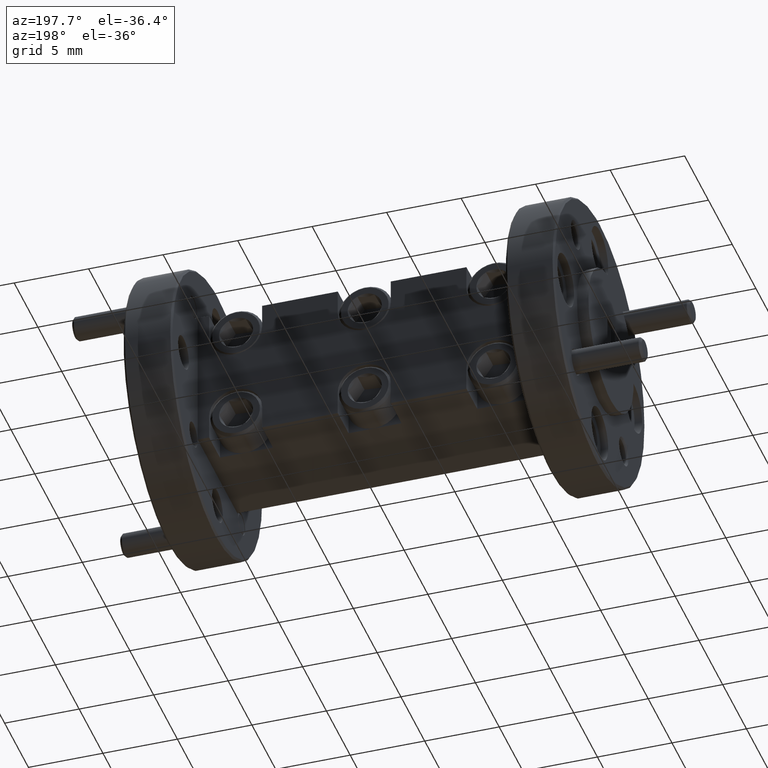
[diagram: clean part render]
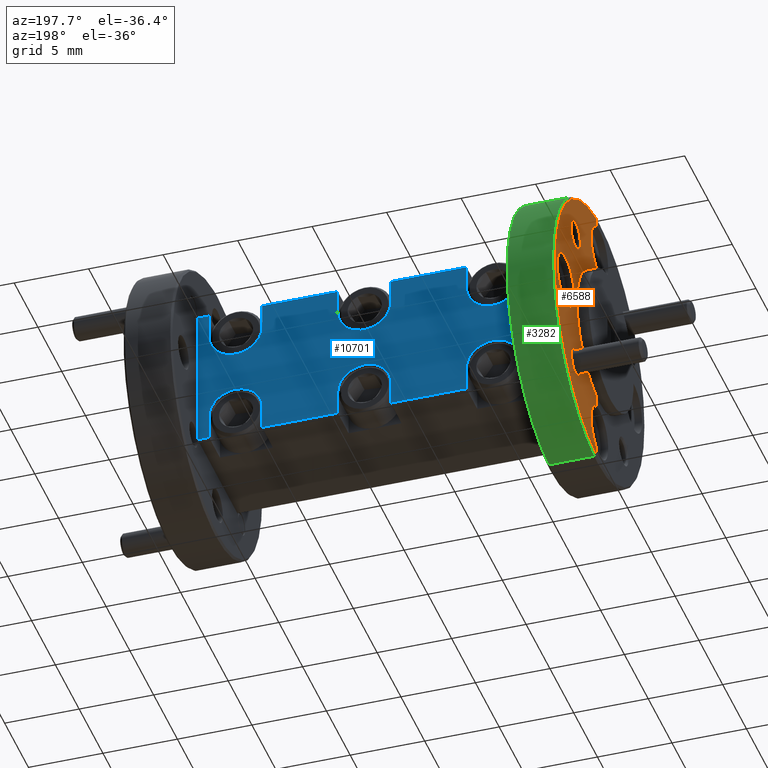
[diagram: same view with three faces highlighted in distinct colors, each labeled with its STEP entity id]
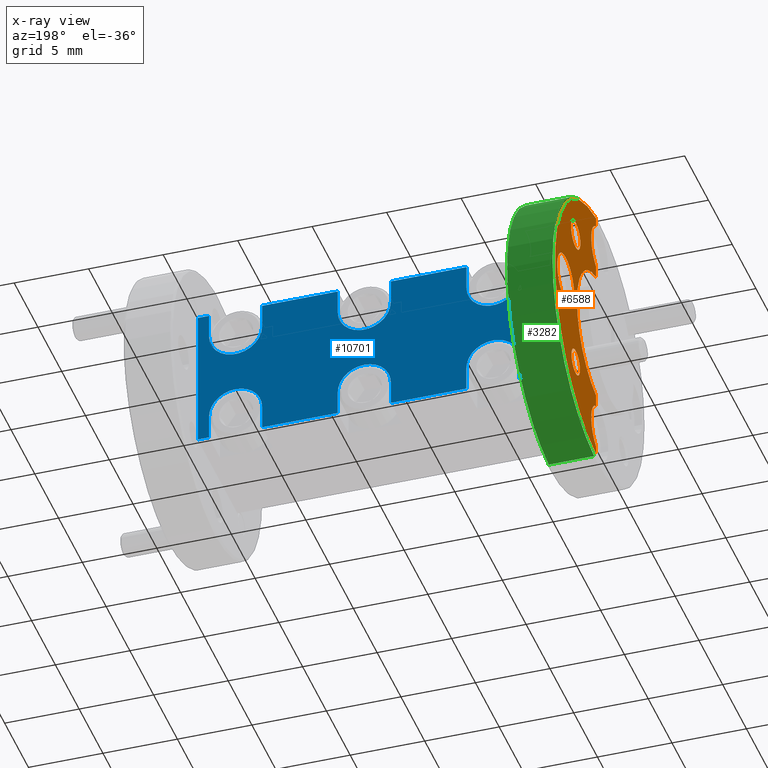
[diagram: x-ray of the same camera — body ghosted, the three highlighted faces saturated]
A machine part, auxiliary view with three faces highlighted in distinct colors.
The next image is the same camera in x-ray (body ghosted, the three faces saturated) — at least one of them is partly hidden behind the body in this view.
Their STEP definitions:

[orange] entity #6588 — the highlighted planar face has unit normal (-1, 0, 0).
#89 = VERTEX_POINT ( 'NONE', #9637 ) ;
#205 = CIRCLE ( 'NONE', #10971, 0.03849999999999997900 ) ;
#314 = DIRECTION ( 'NONE',  ( 0.0000000000000000000, 0.0000000000000000000, 1.000000000000000000 ) ) ;
#475 = CARTESIAN_POINT ( 'NONE',  ( -0.5699999999999999500, -1.280553747030123400E-017, 0.3442559520997826000 ) ) ;
#505 = CIRCLE ( 'NONE', #4522, 0.06999999999999996500 ) ;
#570 = ORIENTED_EDGE ( 'NONE', *, *, #11108, .F. ) ;
#633 = DIRECTION ( 'NONE',  ( 0.0000000000000000000, 0.0000000000000000000, 1.000000000000000000 ) ) ;
#707 = DIRECTION ( 'NONE',  ( -1.000000000000000000, 0.0000000000000000000, 0.0000000000000000000 ) ) ;
#727 = CARTESIAN_POINT ( 'NONE',  ( -0.5699999999999999500, 0.0000000000000000000, 0.0000000000000000000 ) ) ;
#739 = EDGE_CURVE ( 'NONE', #6390, #1070, #205, .T. ) ;
#770 = AXIS2_PLACEMENT_3D ( 'NONE', #1376, #3146, #2084 ) ;
#912 = DIRECTION ( 'NONE',  ( 0.0000000000000000000, 0.0000000000000000000, 1.000000000000000000 ) ) ;
#986 = DIRECTION ( 'NONE',  ( -1.000000000000000000, -0.0000000000000000000, -0.0000000000000000000 ) ) ;
#1015 = VERTEX_POINT ( 'NONE', #1660 ) ;
#1070 = VERTEX_POINT ( 'NONE', #1780 ) ;
#1117 = CIRCLE ( 'NONE', #770, 0.06999999999999996500 ) ;
#1376 = CARTESIAN_POINT ( 'NONE',  ( -0.5699999999999999500, -0.03050000000000009300, 0.2812500000000008900 ) ) ;
#1453 = CARTESIAN_POINT ( 'NONE',  ( -0.5699999999999999500, 0.1683737822087163800, -0.1988737822087160400 ) ) ;
#1525 = EDGE_CURVE ( 'NONE', #2745, #1015, #8411, .T. ) ;
#1606 = CARTESIAN_POINT ( 'NONE',  ( -0.5699999999999999500, 0.1683737822087163800, 0.1988737822087169600 ) ) ;
#1660 = CARTESIAN_POINT ( 'NONE',  ( -0.5699999999999999500, -1.280553747030123400E-017, 0.2182440479002191500 ) ) ;
#1698 = EDGE_CURVE ( 'NONE', #2745, #8046, #5380, .T. ) ;
#1751 = DIRECTION ( 'NONE',  ( -1.000000000000000000, 0.0000000000000000000, 0.0000000000000000000 ) ) ;
#1780 = CARTESIAN_POINT ( 'NONE',  ( -0.5699999999999999500, 0.1683737822087163800, 0.2373737822087169400 ) ) ;
#1952 = CIRCLE ( 'NONE', #2813, 0.07000000000000000700 ) ;
#2084 = DIRECTION ( 'NONE',  ( 0.0000000000000000000, 0.0000000000000000000, 1.000000000000000000 ) ) ;
#2160 = FACE_BOUND ( 'NONE', #7267, .T. ) ;
#2330 = CARTESIAN_POINT ( 'NONE',  ( -0.5699999999999999500, 0.0000000000000000000, 0.3687407625961636700 ) ) ;
#2346 = ORIENTED_EDGE ( 'NONE', *, *, #9823, .F. ) ;
#2349 = VECTOR ( 'NONE', #5856, 39.37007874015748100 ) ;
#2416 = DIRECTION ( 'NONE',  ( 0.0000000000000000000, -0.0000000000000000000, 1.000000000000000000 ) ) ;
#2466 = EDGE_CURVE ( 'NONE', #9999, #8046, #5360, .T. ) ;
#2518 = PLANE ( 'NONE',  #2816 ) ;
#2603 = DIRECTION ( 'NONE',  ( 0.0000000000000000000, 0.0000000000000000000, 1.000000000000000000 ) ) ;
#2745 = VERTEX_POINT ( 'NONE', #6739 ) ;
#2813 = AXIS2_PLACEMENT_3D ( 'NONE', #5210, #4353, #912 ) ;
#2816 = AXIS2_PLACEMENT_3D ( 'NONE', #9600, #707, #5209 ) ;
#3004 = VECTOR ( 'NONE', #2416, 39.37007874015748100 ) ;
#3062 = LINE ( 'NONE', #4090, #2349 ) ;
#3082 = DIRECTION ( 'NONE',  ( -1.000000000000000000, 0.0000000000000000000, 0.0000000000000000000 ) ) ;
#3142 = CARTESIAN_POINT ( 'NONE',  ( -0.5699999999999999500, -0.03050000000000010700, -0.2812500000000000600 ) ) ;
#3146 = DIRECTION ( 'NONE',  ( -1.000000000000000000, 0.0000000000000000000, 0.0000000000000000000 ) ) ;
#3197 = EDGE_CURVE ( 'NONE', #3884, #1015, #1117, .T. ) ;
#3374 = ORIENTED_EDGE ( 'NONE', *, *, #3704, .T. ) ;
#3426 = FACE_OUTER_BOUND ( 'NONE', #9100, .T. ) ;
#3434 = AXIS2_PLACEMENT_3D ( 'NONE', #1606, #9746, #11415 ) ;
#3518 = CARTESIAN_POINT ( 'NONE',  ( -0.5699999999999999500, 0.2507499999999999200, 4.695363739110452600E-016 ) ) ;
#3559 = ORIENTED_EDGE ( 'NONE', *, *, #6648, .T. ) ;
#3693 = ORIENTED_EDGE ( 'NONE', *, *, #10282, .F. ) ;
#3704 = EDGE_CURVE ( 'NONE', #89, #8391, #3062, .T. ) ;
#3774 = DIRECTION ( 'NONE',  ( 0.0000000000000000000, 0.0000000000000000000, 1.000000000000000000 ) ) ;
#3856 = CARTESIAN_POINT ( 'NONE',  ( -0.5699999999999999500, -0.03050000000000000600, 4.751391330171444000E-016 ) ) ;
#3884 = VERTEX_POINT ( 'NONE', #475 ) ;
#3892 = CARTESIAN_POINT ( 'NONE',  ( -0.5699999999999999500, 0.1683737822087163800, 0.1603737822087169800 ) ) ;
#3955 = ORIENTED_EDGE ( 'NONE', *, *, #1525, .T. ) ;
#4066 = CIRCLE ( 'NONE', #6851, 0.03474999999999998200 ) ;
#4090 = CARTESIAN_POINT ( 'NONE',  ( -0.5699999999999999500, 0.0000000000000000000, 0.0000000000000000000 ) ) ;
#4138 = DIRECTION ( 'NONE',  ( 0.0000000000000000000, 0.0000000000000000000, 1.000000000000000000 ) ) ;
#4246 = CARTESIAN_POINT ( 'NONE',  ( -0.5699999999999999500, 0.2507499999999999200, -0.06999999999999953500 ) ) ;
#4264 = DIRECTION ( 'NONE',  ( 0.0000000000000000000, -0.0000000000000000000, 1.000000000000000000 ) ) ;
#4353 = DIRECTION ( 'NONE',  ( -1.000000000000000000, 0.0000000000000000000, 0.0000000000000000000 ) ) ;
#4420 = DIRECTION ( 'NONE',  ( 0.0000000000000000000, -0.0000000000000000000, 1.000000000000000000 ) ) ;
#4522 = AXIS2_PLACEMENT_3D ( 'NONE', #3142, #11208, #4138 ) ;
#4695 = DIRECTION ( 'NONE',  ( -1.000000000000000000, -0.0000000000000000000, -0.0000000000000000000 ) ) ;
#4797 = FACE_BOUND ( 'NONE', #9982, .T. ) ;
#5101 = DIRECTION ( 'NONE',  ( -1.000000000000000000, 0.0000000000000000000, 0.0000000000000000000 ) ) ;
#5209 = DIRECTION ( 'NONE',  ( 0.0000000000000000000, 0.0000000000000000000, 1.000000000000000000 ) ) ;
#5210 = CARTESIAN_POINT ( 'NONE',  ( -0.5699999999999999500, 0.2507499999999999200, 4.695363739110452600E-016 ) ) ;
#5360 = LINE ( 'NONE', #7043, #6747 ) ;
#5380 = CIRCLE ( 'NONE', #9532, 0.1875000000000000300 ) ;
#5384 = VERTEX_POINT ( 'NONE', #2330 ) ;
#5635 = CARTESIAN_POINT ( 'NONE',  ( -0.5699999999999999500, 0.1683737822087163800, 0.1988737822087169600 ) ) ;
#5768 = EDGE_CURVE ( 'NONE', #9999, #8391, #505, .T. ) ;
#5856 = DIRECTION ( 'NONE',  ( 0.0000000000000000000, -0.0000000000000000000, 1.000000000000000000 ) ) ;
#6051 = VERTEX_POINT ( 'NONE', #9078 ) ;
#6094 = VERTEX_POINT ( 'NONE', #10044 ) ;
#6234 = ORIENTED_EDGE ( 'NONE', *, *, #5768, .F. ) ;
#6287 = CARTESIAN_POINT ( 'NONE',  ( -0.5699999999999999500, -4.268512490100411300E-018, -0.2182440479002183700 ) ) ;
#6305 = CARTESIAN_POINT ( 'NONE',  ( -0.5699999999999999500, 0.1683737822087163800, -0.1988737822087160400 ) ) ;
#6390 = VERTEX_POINT ( 'NONE', #3892 ) ;
#6587 = CIRCLE ( 'NONE', #3434, 0.03849999999999997900 ) ;
#6588 = ADVANCED_FACE ( 'NONE', ( #3426, #4797, #2160, #8986 ), #2518, .T. ) ;
#6648 = EDGE_CURVE ( 'NONE', #3884, #5384, #9545, .T. ) ;
#6739 = CARTESIAN_POINT ( 'NONE',  ( -0.5699999999999999500, 8.537024980200822600E-018, 0.1850027026829613200 ) ) ;
#6747 = VECTOR ( 'NONE', #4264, 39.37007874015748100 ) ;
#6767 = AXIS2_PLACEMENT_3D ( 'NONE', #3856, #3082, #10153 ) ;
#6851 = AXIS2_PLACEMENT_3D ( 'NONE', #1453, #8615, #10249 ) ;
#7043 = CARTESIAN_POINT ( 'NONE',  ( -0.5699999999999999500, 0.0000000000000000000, 0.0000000000000000000 ) ) ;
#7076 = ORIENTED_EDGE ( 'NONE', *, *, #8437, .T. ) ;
#7081 = CARTESIAN_POINT ( 'NONE',  ( -0.5699999999999999500, 8.537024980200822600E-018, -0.1850027026829603500 ) ) ;
#7267 = EDGE_LOOP ( 'NONE', ( #2346, #11428 ) ) ;
#7274 = CARTESIAN_POINT ( 'NONE',  ( -0.5699999999999999500, 0.0000000000000000000, 0.0000000000000000000 ) ) ;
#7844 = ORIENTED_EDGE ( 'NONE', *, *, #1698, .F. ) ;
#8046 = VERTEX_POINT ( 'NONE', #7081 ) ;
#8333 = CIRCLE ( 'NONE', #8387, 0.07000000000000000700 ) ;
#8387 = AXIS2_PLACEMENT_3D ( 'NONE', #3518, #1751, #2603 ) ;
#8391 = VERTEX_POINT ( 'NONE', #9853 ) ;
#8411 = LINE ( 'NONE', #727, #3004 ) ;
#8437 = EDGE_CURVE ( 'NONE', #5384, #89, #8907, .T. ) ;
#8615 = DIRECTION ( 'NONE',  ( -1.000000000000000000, -0.0000000000000000000, -0.0000000000000000000 ) ) ;
#8759 = EDGE_CURVE ( 'NONE', #6051, #9306, #8333, .T. ) ;
#8907 = CIRCLE ( 'NONE', #6767, 0.3700000000000000000 ) ;
#8986 = FACE_BOUND ( 'NONE', #9988, .T. ) ;
#9078 = CARTESIAN_POINT ( 'NONE',  ( -0.5699999999999999500, 0.2507499999999999200, 0.07000000000000047900 ) ) ;
#9087 = CIRCLE ( 'NONE', #10555, 0.03474999999999998200 ) ;
#9100 = EDGE_LOOP ( 'NONE', ( #3559, #7076, #3374, #6234, #10174, #7844, #3955, #9121 ) ) ;
#9121 = ORIENTED_EDGE ( 'NONE', *, *, #3197, .F. ) ;
#9306 = VERTEX_POINT ( 'NONE', #4246 ) ;
#9532 = AXIS2_PLACEMENT_3D ( 'NONE', #11281, #5101, #633 ) ;
#9545 = LINE ( 'NONE', #7274, #9816 ) ;
#9600 = CARTESIAN_POINT ( 'NONE',  ( -0.5699999999999999500, -0.03050000000000002400, 4.908789363615472900E-016 ) ) ;
#9637 = CARTESIAN_POINT ( 'NONE',  ( -0.5699999999999999500, 0.0000000000000000000, -0.3687407625961627300 ) ) ;
#9746 = DIRECTION ( 'NONE',  ( -1.000000000000000000, -0.0000000000000000000, -0.0000000000000000000 ) ) ;
#9816 = VECTOR ( 'NONE', #4420, 39.37007874015748100 ) ;
#9823 = EDGE_CURVE ( 'NONE', #1070, #6390, #6587, .T. ) ;
#9853 = CARTESIAN_POINT ( 'NONE',  ( -0.5699999999999999500, -1.707404996040164500E-017, -0.3442559520997818300 ) ) ;
#9982 = EDGE_LOOP ( 'NONE', ( #10549, #570 ) ) ;
#9988 = EDGE_LOOP ( 'NONE', ( #3693, #11542 ) ) ;
#9999 = VERTEX_POINT ( 'NONE', #6287 ) ;
#10024 = CARTESIAN_POINT ( 'NONE',  ( -0.5699999999999999500, 0.1683737822087163800, -0.2336237822087160200 ) ) ;
#10044 = CARTESIAN_POINT ( 'NONE',  ( -0.5699999999999999500, 0.1683737822087163800, -0.1641237822087160400 ) ) ;
#10153 = DIRECTION ( 'NONE',  ( 0.0000000000000000000, 0.0000000000000000000, 1.000000000000000000 ) ) ;
#10174 = ORIENTED_EDGE ( 'NONE', *, *, #2466, .T. ) ;
#10249 = DIRECTION ( 'NONE',  ( 0.0000000000000000000, 0.0000000000000000000, 1.000000000000000000 ) ) ;
#10282 = EDGE_CURVE ( 'NONE', #6094, #11184, #4066, .T. ) ;
#10549 = ORIENTED_EDGE ( 'NONE', *, *, #8759, .F. ) ;
#10555 = AXIS2_PLACEMENT_3D ( 'NONE', #6305, #986, #3774 ) ;
#10971 = AXIS2_PLACEMENT_3D ( 'NONE', #5635, #4695, #314 ) ;
#11108 = EDGE_CURVE ( 'NONE', #9306, #6051, #1952, .T. ) ;
#11184 = VERTEX_POINT ( 'NONE', #10024 ) ;
#11208 = DIRECTION ( 'NONE',  ( -1.000000000000000000, 0.0000000000000000000, 0.0000000000000000000 ) ) ;
#11281 = CARTESIAN_POINT ( 'NONE',  ( -0.5699999999999999500, -0.03050000000000002400, 4.908789363615472900E-016 ) ) ;
#11415 = DIRECTION ( 'NONE',  ( 0.0000000000000000000, 0.0000000000000000000, 1.000000000000000000 ) ) ;
#11428 = ORIENTED_EDGE ( 'NONE', *, *, #739, .F. ) ;
#11504 = EDGE_CURVE ( 'NONE', #11184, #6094, #9087, .T. ) ;
#11542 = ORIENTED_EDGE ( 'NONE', *, *, #11504, .F. ) ;

[blue] entity #10701 — the highlighted planar face has unit normal (0, -1, 0).
#2 = CIRCLE ( 'NONE', #402, 0.07000000000000000700 ) ;
#83 = DIRECTION ( 'NONE',  ( -0.0000000000000000000, -0.0000000000000000000, -1.000000000000000000 ) ) ;
#116 = EDGE_CURVE ( 'NONE', #5122, #4512, #8749, .T. ) ;
#124 = DIRECTION ( 'NONE',  ( 1.000000000000000000, 0.0000000000000000000, -0.0000000000000000000 ) ) ;
#149 = DIRECTION ( 'NONE',  ( 0.0000000000000000000, 0.0000000000000000000, 1.000000000000000000 ) ) ;
#193 = DIRECTION ( 'NONE',  ( -1.000000000000000000, 0.0000000000000000000, 3.880465900091282400E-017 ) ) ;
#226 = CARTESIAN_POINT ( 'NONE',  ( -0.2700000000000001300, 0.1329999999999999500, 0.1900000000000000300 ) ) ;
#233 = CARTESIAN_POINT ( 'NONE',  ( 0.06999999999999986800, 0.1329999999999999500, 0.1250000000000001100 ) ) ;
#269 = ORIENTED_EDGE ( 'NONE', *, *, #3968, .F. ) ;
#333 = DIRECTION ( 'NONE',  ( -0.0000000000000000000, -0.0000000000000000000, 1.000000000000000000 ) ) ;
#339 = CIRCLE ( 'NONE', #10189, 0.07000000000000000700 ) ;
#401 = CARTESIAN_POINT ( 'NONE',  ( -0.4400000000000001100, 0.1329999999999999500, 0.3750000000000002200 ) ) ;
#402 = AXIS2_PLACEMENT_3D ( 'NONE', #2103, #9269, #10879 ) ;
#463 = ORIENTED_EDGE ( 'NONE', *, *, #3860, .T. ) ;
#507 = EDGE_CURVE ( 'NONE', #10570, #2225, #8164, .T. ) ;
#509 = CARTESIAN_POINT ( 'NONE',  ( -1.365923996832131600E-016, 0.1329999999999999500, -0.1250000000000001100 ) ) ;
#559 = CARTESIAN_POINT ( 'NONE',  ( -0.3400000000000001400, 0.1329999999999999500, 0.1250000000000001100 ) ) ;
#594 = CARTESIAN_POINT ( 'NONE',  ( -0.07000000000000014500, 0.1329999999999999500, -0.1250000000000001100 ) ) ;
#672 = DIRECTION ( 'NONE',  ( -0.0000000000000000000, -1.000000000000000000, -0.0000000000000000000 ) ) ;
#689 = CARTESIAN_POINT ( 'NONE',  ( 0.06999999999999986800, 0.1329999999999999500, -0.1250000000000001100 ) ) ;
#764 = VERTEX_POINT ( 'NONE', #233 ) ;
#827 = CARTESIAN_POINT ( 'NONE',  ( 0.4099999999999998600, 0.1329999999999999500, -0.1250000000000001400 ) ) ;
#900 = VERTEX_POINT ( 'NONE', #5005 ) ;
#1045 = CARTESIAN_POINT ( 'NONE',  ( 0.4400000000000001100, 0.1329999999999999500, 0.1900000000000000300 ) ) ;
#1165 = CARTESIAN_POINT ( 'NONE',  ( -0.2700000000000001300, 0.1329999999999999500, -0.1250000000000001100 ) ) ;
#1211 = DIRECTION ( 'NONE',  ( 0.0000000000000000000, 1.000000000000000000, 0.0000000000000000000 ) ) ;
#1248 = CIRCLE ( 'NONE', #8373, 0.07000000000000000700 ) ;
#1446 = EDGE_CURVE ( 'NONE', #9651, #10932, #3137, .T. ) ;
#1696 = AXIS2_PLACEMENT_3D ( 'NONE', #2493, #11288, #10469 ) ;
#1765 = EDGE_CURVE ( 'NONE', #5675, #7776, #9526, .T. ) ;
#1831 = VECTOR ( 'NONE', #8414, 39.37007874015748100 ) ;
#1880 = ORIENTED_EDGE ( 'NONE', *, *, #11524, .F. ) ;
#1935 = ORIENTED_EDGE ( 'NONE', *, *, #8511, .T. ) ;
#2060 = CIRCLE ( 'NONE', #2358, 0.07000000000000000700 ) ;
#2064 = CARTESIAN_POINT ( 'NONE',  ( 0.2699999999999998500, 0.1329999999999999500, -0.1250000000000001400 ) ) ;
#2103 = CARTESIAN_POINT ( 'NONE',  ( 0.3399999999999998600, 0.1329999999999999500, -0.1250000000000001400 ) ) ;
#2225 = VERTEX_POINT ( 'NONE', #6062 ) ;
#2295 = VERTEX_POINT ( 'NONE', #9251 ) ;
#2357 = ORIENTED_EDGE ( 'NONE', *, *, #8079, .F. ) ;
#2358 = AXIS2_PLACEMENT_3D ( 'NONE', #559, #672, #9500 ) ;
#2362 = DIRECTION ( 'NONE',  ( 0.0000000000000000000, 0.0000000000000000000, 1.000000000000000000 ) ) ;
#2380 = DIRECTION ( 'NONE',  ( 0.0000000000000000000, 0.0000000000000000000, 1.000000000000000000 ) ) ;
#2392 = VERTEX_POINT ( 'NONE', #5918 ) ;
#2397 = VECTOR ( 'NONE', #5237, 39.37007874015748100 ) ;
#2421 = DIRECTION ( 'NONE',  ( 1.000000000000000000, 0.0000000000000000000, -0.0000000000000000000 ) ) ;
#2493 = CARTESIAN_POINT ( 'NONE',  ( -1.365923996832131600E-016, 0.1329999999999999500, -0.1250000000000001100 ) ) ;
#2545 = EDGE_CURVE ( 'NONE', #5671, #10932, #3808, .T. ) ;
#2565 = VERTEX_POINT ( 'NONE', #827 ) ;
#2566 = EDGE_CURVE ( 'NONE', #5415, #2295, #6602, .T. ) ;
#2733 = EDGE_CURVE ( 'NONE', #5596, #9803, #4496, .T. ) ;
#2767 = CARTESIAN_POINT ( 'NONE',  ( 0.4099999999999998600, 0.1329999999999999500, -0.1900000000000000600 ) ) ;
#2773 = VECTOR ( 'NONE', #5296, 39.37007874015748100 ) ;
#2806 = CARTESIAN_POINT ( 'NONE',  ( 0.4400000000000001100, 0.1329999999999999500, -0.1899999999999999700 ) ) ;
#2986 = AXIS2_PLACEMENT_3D ( 'NONE', #6098, #11257, #9594 ) ;
#3064 = CARTESIAN_POINT ( 'NONE',  ( 0.4099999999999998600, 0.1329999999999999500, 0.1900000000000000600 ) ) ;
#3066 = DIRECTION ( 'NONE',  ( 0.0000000000000000000, 0.0000000000000000000, -1.000000000000000000 ) ) ;
#3135 = VERTEX_POINT ( 'NONE', #7418 ) ;
#3137 = LINE ( 'NONE', #5783, #9819 ) ;
#3249 = VECTOR ( 'NONE', #5437, 39.37007874015748100 ) ;
#3255 = CARTESIAN_POINT ( 'NONE',  ( 0.4099999999999998600, 0.1329999999999999500, 0.1900000000000000300 ) ) ;
#3318 = DIRECTION ( 'NONE',  ( 0.0000000000000000000, 0.0000000000000000000, 1.000000000000000000 ) ) ;
#3364 = VERTEX_POINT ( 'NONE', #3255 ) ;
#3506 = VECTOR ( 'NONE', #2421, 39.37007874015748100 ) ;
#3638 = VERTEX_POINT ( 'NONE', #7445 ) ;
#3642 = LINE ( 'NONE', #10169, #1831 ) ;
#3759 = VECTOR ( 'NONE', #3318, 39.37007874015748100 ) ;
#3800 = VECTOR ( 'NONE', #193, 39.37007874015748100 ) ;
#3808 = LINE ( 'NONE', #9790, #3249 ) ;
#3851 = ORIENTED_EDGE ( 'NONE', *, *, #11097, .F. ) ;
#3860 = EDGE_CURVE ( 'NONE', #6406, #5265, #4716, .T. ) ;
#3968 = EDGE_CURVE ( 'NONE', #9803, #5675, #9834, .T. ) ;
#4015 = ORIENTED_EDGE ( 'NONE', *, *, #4647, .F. ) ;
#4022 = ORIENTED_EDGE ( 'NONE', *, *, #7130, .T. ) ;
#4054 = CARTESIAN_POINT ( 'NONE',  ( 0.3399999999999998600, 0.1329999999999999500, 0.1250000000000001400 ) ) ;
#4250 = CARTESIAN_POINT ( 'NONE',  ( 0.2699999999999998500, 0.1329999999999999500, -0.1900000000000000600 ) ) ;
#4325 = LINE ( 'NONE', #7758, #3506 ) ;
#4351 = DIRECTION ( 'NONE',  ( 0.0000000000000000000, 0.0000000000000000000, 1.000000000000000000 ) ) ;
#4422 = VECTOR ( 'NONE', #333, 39.37007874015748100 ) ;
#4460 = DIRECTION ( 'NONE',  ( -1.000000000000000000, 0.0000000000000000000, 3.880465900091282400E-017 ) ) ;
#4472 = ORIENTED_EDGE ( 'NONE', *, *, #116, .F. ) ;
#4492 = LINE ( 'NONE', #7432, #7148 ) ;
#4496 = CIRCLE ( 'NONE', #11240, 0.07000000000000000700 ) ;
#4512 = VERTEX_POINT ( 'NONE', #8976 ) ;
#4623 = LINE ( 'NONE', #11018, #3800 ) ;
#4647 = EDGE_CURVE ( 'NONE', #6581, #5122, #1248, .T. ) ;
#4651 = CARTESIAN_POINT ( 'NONE',  ( 0.4400000000000000000, 0.1329999999999999500, 0.1900000000000000300 ) ) ;
#4664 = ORIENTED_EDGE ( 'NONE', *, *, #507, .T. ) ;
#4666 = AXIS2_PLACEMENT_3D ( 'NONE', #4054, #5854, #9502 ) ;
#4716 = CIRCLE ( 'NONE', #4666, 0.07000000000000000700 ) ;
#4746 = LINE ( 'NONE', #6108, #7529 ) ;
#4765 = ORIENTED_EDGE ( 'NONE', *, *, #9795, .T. ) ;
#4776 = CARTESIAN_POINT ( 'NONE',  ( -0.07000000000000014500, 0.1329999999999999500, -0.1899999999999999700 ) ) ;
#4786 = DIRECTION ( 'NONE',  ( 0.0000000000000000000, -0.0000000000000000000, -1.000000000000000000 ) ) ;
#4794 = EDGE_CURVE ( 'NONE', #2565, #5671, #3642, .T. ) ;
#4822 = PLANE ( 'NONE',  #10392 ) ;
#4844 = DIRECTION ( 'NONE',  ( -1.138269997360109900E-016, -0.0000000000000000000, -1.000000000000000000 ) ) ;
#4874 = EDGE_CURVE ( 'NONE', #4512, #9512, #4325, .T. ) ;
#4965 = LINE ( 'NONE', #7553, #4422 ) ;
#4967 = ORIENTED_EDGE ( 'NONE', *, *, #7474, .F. ) ;
#4991 = CIRCLE ( 'NONE', #1696, 0.07000000000000000700 ) ;
#5005 = CARTESIAN_POINT ( 'NONE',  ( -0.4400000000000001700, 0.1329999999999999500, -0.1900000000000000300 ) ) ;
#5122 = VERTEX_POINT ( 'NONE', #1165 ) ;
#5237 = DIRECTION ( 'NONE',  ( -1.000000000000000000, 0.0000000000000000000, 3.880465900091282400E-017 ) ) ;
#5265 = VERTEX_POINT ( 'NONE', #7661 ) ;
#5287 = VECTOR ( 'NONE', #4844, 39.37007874015748100 ) ;
#5296 = DIRECTION ( 'NONE',  ( 0.0000000000000000000, 0.0000000000000000000, -1.000000000000000000 ) ) ;
#5415 = VERTEX_POINT ( 'NONE', #8401 ) ;
#5419 = CARTESIAN_POINT ( 'NONE',  ( -1.365923996832131600E-016, 0.1329999999999999500, -0.05500000000000011100 ) ) ;
#5428 = AXIS2_PLACEMENT_3D ( 'NONE', #8550, #5805, #7546 ) ;
#5437 = DIRECTION ( 'NONE',  ( 1.000000000000000000, 0.0000000000000000000, -0.0000000000000000000 ) ) ;
#5459 = EDGE_CURVE ( 'NONE', #7988, #8395, #9885, .T. ) ;
#5465 = VERTEX_POINT ( 'NONE', #594 ) ;
#5483 = ORIENTED_EDGE ( 'NONE', *, *, #11567, .F. ) ;
#5585 = FACE_OUTER_BOUND ( 'NONE', #9817, .T. ) ;
#5596 = VERTEX_POINT ( 'NONE', #5419 ) ;
#5671 = VERTEX_POINT ( 'NONE', #2767 ) ;
#5675 = VERTEX_POINT ( 'NONE', #6418 ) ;
#5783 = CARTESIAN_POINT ( 'NONE',  ( 0.4400000000000001100, 0.1329999999999999500, 0.3750000000000001100 ) ) ;
#5805 = DIRECTION ( 'NONE',  ( -0.0000000000000000000, -1.000000000000000000, -0.0000000000000000000 ) ) ;
#5854 = DIRECTION ( 'NONE',  ( -0.0000000000000000000, -1.000000000000000000, -0.0000000000000000000 ) ) ;
#5864 = VECTOR ( 'NONE', #2380, 39.37007874015748100 ) ;
#5873 = DIRECTION ( 'NONE',  ( -0.0000000000000000000, -0.0000000000000000000, -1.000000000000000000 ) ) ;
#5894 = VECTOR ( 'NONE', #10759, 39.37007874015748100 ) ;
#5910 = EDGE_CURVE ( 'NONE', #5465, #5596, #4991, .T. ) ;
#5918 = CARTESIAN_POINT ( 'NONE',  ( -0.07000000000000014500, 0.1329999999999999500, 0.1900000000000000300 ) ) ;
#5994 = LINE ( 'NONE', #4250, #5864 ) ;
#6062 = CARTESIAN_POINT ( 'NONE',  ( -0.4100000000000001400, 0.1329999999999999500, 0.1250000000000001100 ) ) ;
#6098 = CARTESIAN_POINT ( 'NONE',  ( -0.3400000000000001400, 0.1329999999999999500, -0.1250000000000001100 ) ) ;
#6108 = CARTESIAN_POINT ( 'NONE',  ( -0.07000000000000014500, 0.1329999999999999500, -0.1900000000000000300 ) ) ;
#6151 = EDGE_CURVE ( 'NONE', #764, #2295, #4965, .T. ) ;
#6189 = ORIENTED_EDGE ( 'NONE', *, *, #4874, .F. ) ;
#6406 = VERTEX_POINT ( 'NONE', #7426 ) ;
#6418 = CARTESIAN_POINT ( 'NONE',  ( 0.06999999999999986800, 0.1329999999999999500, -0.1900000000000000300 ) ) ;
#6469 = EDGE_CURVE ( 'NONE', #7048, #2565, #339, .T. ) ;
#6581 = VERTEX_POINT ( 'NONE', #9683 ) ;
#6602 = LINE ( 'NONE', #9712, #9648 ) ;
#6638 = ORIENTED_EDGE ( 'NONE', *, *, #8727, .T. ) ;
#6800 = VERTEX_POINT ( 'NONE', #2064 ) ;
#6824 = DIRECTION ( 'NONE',  ( -1.138269997360109900E-016, -0.0000000000000000000, -1.000000000000000000 ) ) ;
#6940 = ORIENTED_EDGE ( 'NONE', *, *, #1446, .T. ) ;
#6973 = CARTESIAN_POINT ( 'NONE',  ( 0.4400000000000000000, 0.1329999999999999500, -0.1900000000000000300 ) ) ;
#7010 = CARTESIAN_POINT ( 'NONE',  ( -0.2700000000000001300, 0.1329999999999999500, -0.1900000000000000300 ) ) ;
#7048 = VERTEX_POINT ( 'NONE', #8921 ) ;
#7107 = VECTOR ( 'NONE', #124, 39.37007874015748100 ) ;
#7130 = EDGE_CURVE ( 'NONE', #2392, #8781, #4492, .T. ) ;
#7148 = VECTOR ( 'NONE', #8201, 39.37007874015748100 ) ;
#7252 = ORIENTED_EDGE ( 'NONE', *, *, #2566, .F. ) ;
#7418 = CARTESIAN_POINT ( 'NONE',  ( -0.2700000000000000700, 0.1329999999999999500, 0.1900000000000000600 ) ) ;
#7426 = CARTESIAN_POINT ( 'NONE',  ( 0.2699999999999998500, 0.1329999999999999500, 0.1250000000000001400 ) ) ;
#7432 = CARTESIAN_POINT ( 'NONE',  ( -0.07000000000000014500, 0.1329999999999999500, 0.1900000000000000300 ) ) ;
#7445 = CARTESIAN_POINT ( 'NONE',  ( -0.2700000000000001300, 0.1329999999999999500, 0.1250000000000001100 ) ) ;
#7474 = EDGE_CURVE ( 'NONE', #8395, #6581, #7686, .T. ) ;
#7529 = VECTOR ( 'NONE', #7974, 39.37007874015748100 ) ;
#7546 = DIRECTION ( 'NONE',  ( 0.0000000000000000000, 0.0000000000000000000, -1.000000000000000000 ) ) ;
#7553 = CARTESIAN_POINT ( 'NONE',  ( 0.06999999999999986800, 0.1329999999999999500, 0.1900000000000000300 ) ) ;
#7593 = DIRECTION ( 'NONE',  ( 0.0000000000000000000, -1.000000000000000000, 0.0000000000000000000 ) ) ;
#7598 = CARTESIAN_POINT ( 'NONE',  ( -0.4100000000000001400, 0.1329999999999999500, -0.1899999999999999700 ) ) ;
#7616 = VECTOR ( 'NONE', #3066, 39.37007874015748100 ) ;
#7661 = CARTESIAN_POINT ( 'NONE',  ( 0.4099999999999998600, 0.1329999999999999500, 0.1250000000000001400 ) ) ;
#7686 = CIRCLE ( 'NONE', #2986, 0.07000000000000000700 ) ;
#7758 = CARTESIAN_POINT ( 'NONE',  ( 0.4400000000000001100, 0.1329999999999999500, -0.1899999999999999700 ) ) ;
#7776 = VERTEX_POINT ( 'NONE', #10749 ) ;
#7974 = DIRECTION ( 'NONE',  ( 0.0000000000000000000, 0.0000000000000000000, 1.000000000000000000 ) ) ;
#7988 = VERTEX_POINT ( 'NONE', #7598 ) ;
#8079 = EDGE_CURVE ( 'NONE', #7776, #6800, #5994, .T. ) ;
#8123 = CARTESIAN_POINT ( 'NONE',  ( -0.4100000000000001400, 0.1329999999999999500, -0.1250000000000001100 ) ) ;
#8157 = VERTEX_POINT ( 'NONE', #9814 ) ;
#8164 = LINE ( 'NONE', #8370, #7616 ) ;
#8175 = VECTOR ( 'NONE', #5873, 39.37007874015748100 ) ;
#8201 = DIRECTION ( 'NONE',  ( 0.0000000000000000000, 0.0000000000000000000, -1.000000000000000000 ) ) ;
#8257 = ORIENTED_EDGE ( 'NONE', *, *, #1765, .F. ) ;
#8297 = DIRECTION ( 'NONE',  ( -0.0000000000000000000, -0.0000000000000000000, 1.000000000000000000 ) ) ;
#8350 = ORIENTED_EDGE ( 'NONE', *, *, #2545, .F. ) ;
#8370 = CARTESIAN_POINT ( 'NONE',  ( -0.4100000000000001400, 0.1329999999999999500, 0.1900000000000000300 ) ) ;
#8373 = AXIS2_PLACEMENT_3D ( 'NONE', #11010, #1211, #149 ) ;
#8394 = EDGE_CURVE ( 'NONE', #900, #7988, #9187, .T. ) ;
#8395 = VERTEX_POINT ( 'NONE', #8123 ) ;
#8401 = CARTESIAN_POINT ( 'NONE',  ( 0.2699999999999998500, 0.1329999999999999500, 0.1900000000000000600 ) ) ;
#8414 = DIRECTION ( 'NONE',  ( -0.0000000000000000000, -0.0000000000000000000, -1.000000000000000000 ) ) ;
#8424 = DIRECTION ( 'NONE',  ( 0.0000000000000000000, 1.000000000000000000, 0.0000000000000000000 ) ) ;
#8455 = VECTOR ( 'NONE', #8297, 39.37007874015748100 ) ;
#8476 = CIRCLE ( 'NONE', #5428, 0.07000000000000000700 ) ;
#8511 = EDGE_CURVE ( 'NONE', #8781, #764, #8476, .T. ) ;
#8550 = CARTESIAN_POINT ( 'NONE',  ( -1.365923996832131600E-016, 0.1329999999999999500, 0.1250000000000001100 ) ) ;
#8641 = CARTESIAN_POINT ( 'NONE',  ( -0.4100000000000001400, 0.1329999999999999500, -0.1900000000000000300 ) ) ;
#8727 = EDGE_CURVE ( 'NONE', #5415, #6406, #10151, .T. ) ;
#8728 = ORIENTED_EDGE ( 'NONE', *, *, #11265, .T. ) ;
#8749 = LINE ( 'NONE', #7010, #8175 ) ;
#8781 = VERTEX_POINT ( 'NONE', #8867 ) ;
#8842 = CARTESIAN_POINT ( 'NONE',  ( 0.4400000000000001100, 0.1329999999999999500, -0.1899999999999999700 ) ) ;
#8867 = CARTESIAN_POINT ( 'NONE',  ( -0.07000000000000014500, 0.1329999999999999500, 0.1250000000000001100 ) ) ;
#8882 = EDGE_CURVE ( 'NONE', #8157, #900, #10004, .T. ) ;
#8921 = CARTESIAN_POINT ( 'NONE',  ( 0.3399999999999998600, 0.1329999999999999500, -0.05500000000000013200 ) ) ;
#8976 = CARTESIAN_POINT ( 'NONE',  ( -0.2700000000000001300, 0.1329999999999999500, -0.1900000000000000300 ) ) ;
#8987 = CARTESIAN_POINT ( 'NONE',  ( 0.06999999999999986800, 0.1329999999999999500, -0.1900000000000000300 ) ) ;
#9017 = VECTOR ( 'NONE', #10165, 39.37007874015748100 ) ;
#9081 = CARTESIAN_POINT ( 'NONE',  ( -0.4100000000000001400, 0.1329999999999999500, 0.1900000000000000300 ) ) ;
#9096 = LINE ( 'NONE', #10556, #2397 ) ;
#9187 = LINE ( 'NONE', #2806, #7107 ) ;
#9188 = EDGE_CURVE ( 'NONE', #2225, #3638, #2060, .T. ) ;
#9195 = LINE ( 'NONE', #226, #8455 ) ;
#9251 = CARTESIAN_POINT ( 'NONE',  ( 0.06999999999999986800, 0.1329999999999999500, 0.1900000000000000300 ) ) ;
#9269 = DIRECTION ( 'NONE',  ( 0.0000000000000000000, 1.000000000000000000, 0.0000000000000000000 ) ) ;
#9302 = ORIENTED_EDGE ( 'NONE', *, *, #6469, .F. ) ;
#9500 = DIRECTION ( 'NONE',  ( 0.0000000000000000000, 0.0000000000000000000, -1.000000000000000000 ) ) ;
#9502 = DIRECTION ( 'NONE',  ( 0.0000000000000000000, 0.0000000000000000000, -1.000000000000000000 ) ) ;
#9512 = VERTEX_POINT ( 'NONE', #4776 ) ;
#9526 = LINE ( 'NONE', #8842, #10080 ) ;
#9594 = DIRECTION ( 'NONE',  ( 0.0000000000000000000, 0.0000000000000000000, 1.000000000000000000 ) ) ;
#9599 = ORIENTED_EDGE ( 'NONE', *, *, #9188, .T. ) ;
#9630 = ORIENTED_EDGE ( 'NONE', *, *, #5459, .F. ) ;
#9648 = VECTOR ( 'NONE', #4460, 39.37007874015748100 ) ;
#9651 = VERTEX_POINT ( 'NONE', #1045 ) ;
#9683 = CARTESIAN_POINT ( 'NONE',  ( -0.3400000000000001400, 0.1329999999999999500, -0.05500000000000009700 ) ) ;
#9712 = CARTESIAN_POINT ( 'NONE',  ( 0.4400000000000000000, 0.1329999999999999500, 0.1900000000000000300 ) ) ;
#9790 = CARTESIAN_POINT ( 'NONE',  ( 0.4400000000000001100, 0.1329999999999999500, -0.1899999999999999700 ) ) ;
#9795 = EDGE_CURVE ( 'NONE', #5265, #3364, #11379, .T. ) ;
#9803 = VERTEX_POINT ( 'NONE', #689 ) ;
#9811 = DIRECTION ( 'NONE',  ( 1.000000000000000000, 0.0000000000000000000, -0.0000000000000000000 ) ) ;
#9814 = CARTESIAN_POINT ( 'NONE',  ( -0.4400000000000001700, 0.1329999999999999500, 0.1900000000000000600 ) ) ;
#9817 = EDGE_LOOP ( 'NONE', ( #6638, #463, #4765, #10511, #6940, #8350, #10248, #9302, #11047, #2357, #8257, #269, #10542, #11203, #3851, #6189, #4472, #4015, #4967, #9630, #11386, #10433, #5483, #4664, #9599, #8728, #1880, #4022, #1935, #10075, #7252 ) ) ;
#9819 = VECTOR ( 'NONE', #6824, 39.37007874015748100 ) ;
#9834 = LINE ( 'NONE', #8987, #10789 ) ;
#9880 = EDGE_CURVE ( 'NONE', #9651, #3364, #9096, .T. ) ;
#9885 = LINE ( 'NONE', #8641, #3759 ) ;
#9993 = CARTESIAN_POINT ( 'NONE',  ( 0.2699999999999998500, 0.1329999999999999500, 0.1900000000000000600 ) ) ;
#10004 = LINE ( 'NONE', #10177, #5287 ) ;
#10040 = EDGE_CURVE ( 'NONE', #6800, #7048, #2, .T. ) ;
#10075 = ORIENTED_EDGE ( 'NONE', *, *, #6151, .T. ) ;
#10080 = VECTOR ( 'NONE', #9811, 39.37007874015748100 ) ;
#10151 = LINE ( 'NONE', #9993, #2773 ) ;
#10165 = DIRECTION ( 'NONE',  ( -0.0000000000000000000, -0.0000000000000000000, 1.000000000000000000 ) ) ;
#10169 = CARTESIAN_POINT ( 'NONE',  ( 0.4099999999999998600, 0.1329999999999999500, -0.1900000000000000600 ) ) ;
#10177 = CARTESIAN_POINT ( 'NONE',  ( -0.4400000000000001100, 0.1329999999999999500, 0.3750000000000002200 ) ) ;
#10181 = CARTESIAN_POINT ( 'NONE',  ( 0.3399999999999998600, 0.1329999999999999500, -0.1250000000000001400 ) ) ;
#10189 = AXIS2_PLACEMENT_3D ( 'NONE', #10181, #8424, #4351 ) ;
#10248 = ORIENTED_EDGE ( 'NONE', *, *, #4794, .F. ) ;
#10392 = AXIS2_PLACEMENT_3D ( 'NONE', #401, #7593, #4786 ) ;
#10433 = ORIENTED_EDGE ( 'NONE', *, *, #8882, .F. ) ;
#10469 = DIRECTION ( 'NONE',  ( 0.0000000000000000000, 0.0000000000000000000, 1.000000000000000000 ) ) ;
#10511 = ORIENTED_EDGE ( 'NONE', *, *, #9880, .F. ) ;
#10542 = ORIENTED_EDGE ( 'NONE', *, *, #2733, .F. ) ;
#10556 = CARTESIAN_POINT ( 'NONE',  ( 0.4400000000000000000, 0.1329999999999999500, 0.1900000000000000300 ) ) ;
#10570 = VERTEX_POINT ( 'NONE', #9081 ) ;
#10701 = ADVANCED_FACE ( 'NONE', ( #5585 ), #4822, .F. ) ;
#10749 = CARTESIAN_POINT ( 'NONE',  ( 0.2699999999999998500, 0.1329999999999999500, -0.1899999999999999700 ) ) ;
#10759 = DIRECTION ( 'NONE',  ( -1.000000000000000000, 0.0000000000000000000, 3.880465900091282400E-017 ) ) ;
#10789 = VECTOR ( 'NONE', #83, 39.37007874015748100 ) ;
#10879 = DIRECTION ( 'NONE',  ( 0.0000000000000000000, 0.0000000000000000000, 1.000000000000000000 ) ) ;
#10932 = VERTEX_POINT ( 'NONE', #6973 ) ;
#11010 = CARTESIAN_POINT ( 'NONE',  ( -0.3400000000000001400, 0.1329999999999999500, -0.1250000000000001100 ) ) ;
#11018 = CARTESIAN_POINT ( 'NONE',  ( 0.4400000000000000000, 0.1329999999999999500, 0.1900000000000000300 ) ) ;
#11047 = ORIENTED_EDGE ( 'NONE', *, *, #10040, .F. ) ;
#11097 = EDGE_CURVE ( 'NONE', #9512, #5465, #4746, .T. ) ;
#11102 = DIRECTION ( 'NONE',  ( 0.0000000000000000000, 1.000000000000000000, 0.0000000000000000000 ) ) ;
#11203 = ORIENTED_EDGE ( 'NONE', *, *, #5910, .F. ) ;
#11240 = AXIS2_PLACEMENT_3D ( 'NONE', #509, #11102, #2362 ) ;
#11257 = DIRECTION ( 'NONE',  ( 0.0000000000000000000, 1.000000000000000000, 0.0000000000000000000 ) ) ;
#11265 = EDGE_CURVE ( 'NONE', #3638, #3135, #9195, .T. ) ;
#11288 = DIRECTION ( 'NONE',  ( 0.0000000000000000000, 1.000000000000000000, 0.0000000000000000000 ) ) ;
#11293 = LINE ( 'NONE', #4651, #5894 ) ;
#11379 = LINE ( 'NONE', #3064, #9017 ) ;
#11386 = ORIENTED_EDGE ( 'NONE', *, *, #8394, .F. ) ;
#11524 = EDGE_CURVE ( 'NONE', #2392, #3135, #11293, .T. ) ;
#11567 = EDGE_CURVE ( 'NONE', #10570, #8157, #4623, .T. ) ;

[green] entity #3282 — the highlighted cylindrical surface (partial cylindrical patch) has radius 9.525 mm, axis along (-1, -0, -0).
#31 = CARTESIAN_POINT ( 'NONE',  ( 0.7525000000000011700, 0.0000000000000000000, -0.3737576086182055100 ) ) ;
#539 = CIRCLE ( 'NONE', #8153, 0.3750000000000000600 ) ;
#1229 = EDGE_CURVE ( 'NONE', #11151, #2448, #8718, .T. ) ;
#1254 = CARTESIAN_POINT ( 'NONE',  ( 0.7525000000000011700, -0.03050000000000000600, 4.751391330171444000E-016 ) ) ;
#1752 = VECTOR ( 'NONE', #1857, 39.37007874015748100 ) ;
#1857 = DIRECTION ( 'NONE',  ( -1.000000000000000000, -0.0000000000000000000, -0.0000000000000000000 ) ) ;
#1886 = EDGE_LOOP ( 'NONE', ( #8925, #8469, #2576, #8796 ) ) ;
#2448 = VERTEX_POINT ( 'NONE', #4191 ) ;
#2496 = FACE_OUTER_BOUND ( 'NONE', #1886, .T. ) ;
#2516 = CARTESIAN_POINT ( 'NONE',  ( -0.4450000000000001700, -0.03050000000000000600, 4.751391330171444000E-016 ) ) ;
#2576 = ORIENTED_EDGE ( 'NONE', *, *, #9539, .T. ) ;
#3282 = ADVANCED_FACE ( 'NONE', ( #2496 ), #5153, .T. ) ;
#3424 = DIRECTION ( 'NONE',  ( 0.0000000000000000000, 0.0000000000000000000, 1.000000000000000000 ) ) ;
#3817 = DIRECTION ( 'NONE',  ( 1.000000000000000000, 0.0000000000000000000, 0.0000000000000000000 ) ) ;
#4191 = CARTESIAN_POINT ( 'NONE',  ( -0.5650000000000002800, 0.0000000000000000000, -0.3737576086182055100 ) ) ;
#4458 = EDGE_CURVE ( 'NONE', #10991, #11151, #539, .T. ) ;
#4508 = EDGE_CURVE ( 'NONE', #2448, #8029, #6002, .T. ) ;
#5153 = CYLINDRICAL_SURFACE ( 'NONE', #7510, 0.3750000000000000600 ) ;
#5404 = CARTESIAN_POINT ( 'NONE',  ( -0.5650000000000002800, 0.0000000000000000000, 0.3737576086182064500 ) ) ;
#5448 = DIRECTION ( 'NONE',  ( 1.000000000000000000, 0.0000000000000000000, 0.0000000000000000000 ) ) ;
#5510 = CARTESIAN_POINT ( 'NONE',  ( -0.5650000000000002800, -0.03050000000000000600, 4.751391330171444000E-016 ) ) ;
#5967 = LINE ( 'NONE', #8426, #9997 ) ;
#6002 = CIRCLE ( 'NONE', #9361, 0.3750000000000000600 ) ;
#6571 = DIRECTION ( 'NONE',  ( -1.000000000000000000, -0.0000000000000000000, -0.0000000000000000000 ) ) ;
#6887 = CARTESIAN_POINT ( 'NONE',  ( -0.4450000000000001700, 0.0000000000000000000, 0.3737576086182064500 ) ) ;
#7458 = DIRECTION ( 'NONE',  ( 0.0000000000000000000, 0.0000000000000000000, 1.000000000000000000 ) ) ;
#7510 = AXIS2_PLACEMENT_3D ( 'NONE', #1254, #6571, #7458 ) ;
#8029 = VERTEX_POINT ( 'NONE', #5404 ) ;
#8112 = DIRECTION ( 'NONE',  ( 0.0000000000000000000, 8.878505979408855000E-016, 1.000000000000000000 ) ) ;
#8153 = AXIS2_PLACEMENT_3D ( 'NONE', #2516, #8750, #3424 ) ;
#8426 = CARTESIAN_POINT ( 'NONE',  ( 0.7525000000000011700, 0.0000000000000000000, 0.3737576086182064500 ) ) ;
#8469 = ORIENTED_EDGE ( 'NONE', *, *, #4508, .T. ) ;
#8718 = LINE ( 'NONE', #31, #1752 ) ;
#8750 = DIRECTION ( 'NONE',  ( -1.000000000000000000, -0.0000000000000000000, -0.0000000000000000000 ) ) ;
#8796 = ORIENTED_EDGE ( 'NONE', *, *, #4458, .T. ) ;
#8925 = ORIENTED_EDGE ( 'NONE', *, *, #1229, .T. ) ;
#9361 = AXIS2_PLACEMENT_3D ( 'NONE', #5510, #5448, #8112 ) ;
#9539 = EDGE_CURVE ( 'NONE', #8029, #10991, #5967, .T. ) ;
#9725 = CARTESIAN_POINT ( 'NONE',  ( -0.4450000000000001700, 0.0000000000000000000, -0.3737576086182055100 ) ) ;
#9997 = VECTOR ( 'NONE', #3817, 39.37007874015748100 ) ;
#10991 = VERTEX_POINT ( 'NONE', #6887 ) ;
#11151 = VERTEX_POINT ( 'NONE', #9725 ) ;